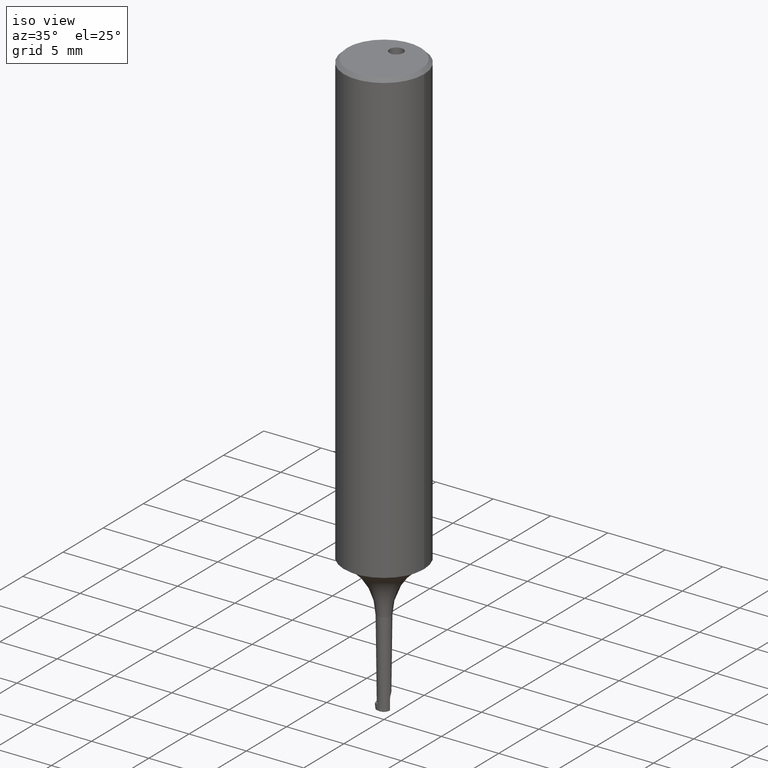
[diagram: clean part render]
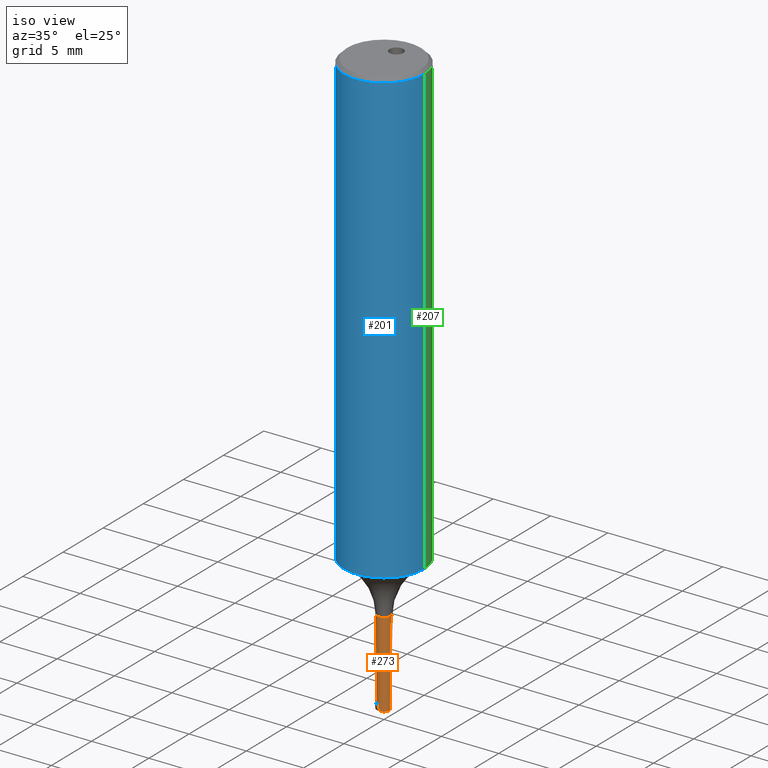
[diagram: same view with three faces highlighted in distinct colors, each labeled with its STEP entity id]
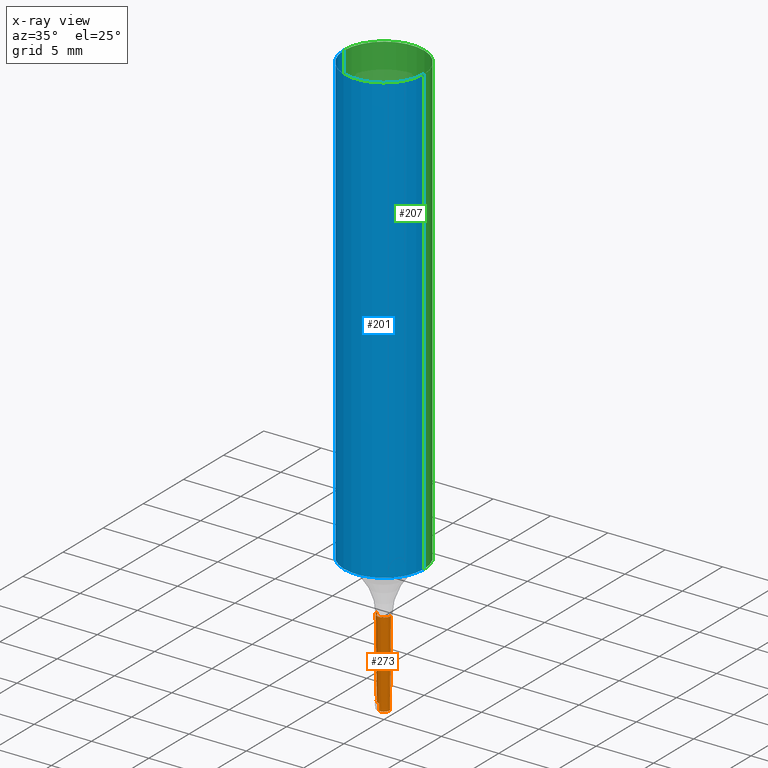
[diagram: x-ray of the same camera — body ghosted, the three highlighted faces saturated]
A machine part, iso view with three faces highlighted in distinct colors.
The next image is the same camera in x-ray (body ghosted, the three faces saturated) — at least one of them is partly hidden behind the body in this view.
Their STEP definitions:

[orange] entity #273 — the highlighted conical surface has half-angle 0.678 deg.
#177=VERTEX_POINT('NONE',#451);
#189=EDGE_CURVE('NONE',#309,#385,#464,.T.);
#199=EDGE_CURVE('NONE',#177,#371,#475,.F.);
#205=VERTEX_POINT('NONE',#482);
#213=EDGE_CURVE('NONE',#307,#401,#494,.F.);
#239=EDGE_CURVE('NONE',#385,#301,#522,.F.);
#273=ADVANCED_FACE('NONE',(#560),#561,.T.);
#281=EDGE_CURVE('NONE',#323,#205,#570,.F.);
#297=EDGE_CURVE('NONE',#323,#301,#587,.T.);
#301=VERTEX_POINT('NONE',#591);
#307=VERTEX_POINT('NONE',#597);
#309=VERTEX_POINT('NONE',#599);
#323=VERTEX_POINT('NONE',#613);
#335=EDGE_CURVE('NONE',#205,#371,#627,.T.);
#367=EDGE_CURVE('NONE',#307,#309,#662,.F.);
#371=VERTEX_POINT('NONE',#666);
#385=VERTEX_POINT('NONE',#681);
#395=EDGE_CURVE('NONE',#401,#177,#692,.T.);
#401=VERTEX_POINT('NONE',#698);
#451=CARTESIAN_POINT('',(-0.606201534117828,2.19077839488913E-015,-43.7757636492398));
#464=B_SPLINE_CURVE_WITH_KNOTS('',3,(#791,#792,#793,#794),.UNSPECIFIED.,.F.,.F.,(4,4),(0.0,1.0),.UNSPECIFIED.);
#475=CIRCLE('',#811,0.606201534117829);
#482=CARTESIAN_POINT('',(0.517913585126878,-1.80828630221237E-015,-51.239038270608));
#494=CIRCLE('',#833,0.525000000000001);
#522=LINE('',#920,#921);
#560=FACE_OUTER_BOUND('',#1063,.T.);
#561=CONICAL_SURFACE('',#1064,0.517192429022083,0.011829101226573);
#570=ELLIPSE('',#1075,0.518304236052932,0.517592595277501);
#587=ELLIPSE('',#1119,0.520045335021247,0.517196072492781);
#591=CARTESIAN_POINT('',(-0.063108177516942,-0.513974860144495,-51.2457048645177));
#597=CARTESIAN_POINT('',(-0.100177237868997,-0.515353782379616,-50.64));
#599=CARTESIAN_POINT('',(-0.10018624308668,-0.51540010900124,-50.6360105551992));
#613=CARTESIAN_POINT('',(0.267427079201015,-0.443333508049954,-51.2531295698077));
#627=LINE('',#1207,#1208);
#662=LINE('',#1261,#1262);
#666=CARTESIAN_POINT('',(0.606201534117828,-2.11654256985138E-015,-43.7757636492398));
#681=CARTESIAN_POINT('',(-0.0639814052876999,-0.521086729611695,-50.64));
#692=LINE('',#1337,#1338);
#698=CARTESIAN_POINT('',(-0.525000000000001,1.8973205981581E-015,-50.64));
#791=CARTESIAN_POINT('',(-0.10018624308668,-0.51540010900124,-50.6360105551992));
#792=CARTESIAN_POINT('',(-0.0881774515377763,-0.517711221994338,-50.6379373910918));
#793=CARTESIAN_POINT('',(-0.0760997427999065,-0.519607518660235,-50.6392672060254));
#794=CARTESIAN_POINT('',(-0.0639814052876999,-0.521086729611695,-50.64));
#811=AXIS2_PLACEMENT_3D('',#1420,#1421,#1422);
#833=AXIS2_PLACEMENT_3D('',#1460,#1461,#1462);
#920=CARTESIAN_POINT('',(-0.0630299017380239,-0.513337355084056,-51.3));
#921=VECTOR('',#1482,1.0);
#1063=EDGE_LOOP('',(#1524,#1525,#1526,#1527,#1528,#1529,#1530,#1531,#1532));
#1064=AXIS2_PLACEMENT_3D('',#1533,#1534,#1535);
#1075=AXIS2_PLACEMENT_3D('',#1547,#1548,#1549);
#1119=AXIS2_PLACEMENT_3D('',#1566,#1567,#1568);
#1207=CARTESIAN_POINT('',(0.517192429022083,-1.80576876042235E-015,-51.3));
#1208=VECTOR('',#1596,1000.0);
#1261=CARTESIAN_POINT('',(-0.0986874456879802,-0.507689665742155,-51.3));
#1262=VECTOR('',#1630,1.0);
#1337=CARTESIAN_POINT('',(-0.517192429022083,1.86910447389527E-015,-51.3));
#1338=VECTOR('',#1654,1000.0);
#1420=CARTESIAN_POINT('',(0.0,0.0,-43.7757636492398));
#1421=DIRECTION('',(0.0,0.0,-1.0));
#1422=DIRECTION('',(1.0,-3.49148336110938E-015,0.0));
#1460=CARTESIAN_POINT('',(0.0,0.0,-50.64));
#1461=DIRECTION('',(0.0,-0.0,1.0));
#1462=DIRECTION('',(1.0,-3.49148336110938E-015,-0.0));
#1482=DIRECTION('',(-0.00144157117970888,-0.0117406550883253,0.999930036997905));
#1524=ORIENTED_EDGE('',*,*,#395,.F.);
#1525=ORIENTED_EDGE('',*,*,#213,.F.);
#1526=ORIENTED_EDGE('',*,*,#367,.T.);
#1527=ORIENTED_EDGE('',*,*,#189,.T.);
#1528=ORIENTED_EDGE('',*,*,#239,.T.);
#1529=ORIENTED_EDGE('',*,*,#297,.F.);
#1530=ORIENTED_EDGE('',*,*,#281,.T.);
#1531=ORIENTED_EDGE('',*,*,#335,.T.);
#1532=ORIENTED_EDGE('',*,*,#199,.F.);
#1533=CARTESIAN_POINT('',(0.0,0.0,-51.3));
#1534=DIRECTION('',(-0.0,-0.0,1.0));
#1535=DIRECTION('',(1.0,-3.49148336110938E-015,0.0));
#1547=CARTESIAN_POINT('',(0.000320890549904473,1.33115467463307E-005,-51.2661641894687));
#1548=DIRECTION('',(0.0523359562429341,0.00217105965957894,-0.998627174767487));
#1549=DIRECTION('',(-0.997769038025445,-0.0413905900159752,-0.0523809680695934));
#1566=CARTESIAN_POINT('',(-1.11022302462516E-016,-0.000643054491710759,-51.2996582113884));
#1567=DIRECTION('',(-3.64959390261329E-016,-0.104528463267649,-0.994521895368274));
#1568=DIRECTION('',(-2.09161427898538E-015,0.994521895368274,-0.104528463267649));
#1596=DIRECTION('',(0.0118288253588083,-4.13001469217479E-017,0.999930036997905));
#1630=DIRECTION('',(0.00225710295558114,0.0116114855043226,-0.999930036997905));
#1654=DIRECTION('',(-0.0118288253588083,4.2748712391013E-017,0.999930036997905));

[blue] entity #201 — the highlighted cylindrical surface (partial cylindrical patch) has radius 3.5 mm, axis along (-0, -0, 1).
#155=VERTEX_POINT('NONE',#427);
#201=ADVANCED_FACE('NONE',(#477),#478,.T.);
#225=VERTEX_POINT('NONE',#507);
#233=VERTEX_POINT('NONE',#516);
#255=EDGE_CURVE('NONE',#315,#225,#541,.T.);
#285=EDGE_CURVE('NONE',#155,#315,#574,.T.);
#293=EDGE_CURVE('NONE',#155,#233,#583,.T.);
#315=VERTEX_POINT('NONE',#605);
#403=EDGE_CURVE('NONE',#225,#233,#700,.T.);
#427=CARTESIAN_POINT('',(-3.5,1.26488039877207E-014,-39.3));
#477=FACE_OUTER_BOUND('',#813,.T.);
#478=CYLINDRICAL_SURFACE('',#814,3.5);
#507=CARTESIAN_POINT('',(3.5,-1.22201917638828E-014,-0.300000000000007));
#516=CARTESIAN_POINT('',(-3.5,1.26488039877207E-014,-0.300000000000007));
#541=LINE('',#1035,#1036);
#574=CIRCLE('',#1080,3.5);
#583=LINE('',#1093,#1094);
#605=CARTESIAN_POINT('',(3.5,-1.22201917638828E-014,-39.3));
#700=CIRCLE('',#1348,3.5);
#813=EDGE_LOOP('',(#1424,#1425,#1426,#1427));
#814=AXIS2_PLACEMENT_3D('',#1428,#1429,#1430);
#1035=CARTESIAN_POINT('',(3.5,-1.22201917638828E-014,4.84780321269557));
#1036=VECTOR('',#1507,1000.0);
#1080=AXIS2_PLACEMENT_3D('',#1550,#1551,#1552);
#1093=CARTESIAN_POINT('',(-3.5,1.26488039877207E-014,4.84780321269557));
#1094=VECTOR('',#1565,1000.0);
#1348=AXIS2_PLACEMENT_3D('',#1658,#1659,#1660);
#1424=ORIENTED_EDGE('',*,*,#293,.F.);
#1425=ORIENTED_EDGE('',*,*,#285,.T.);
#1426=ORIENTED_EDGE('',*,*,#255,.T.);
#1427=ORIENTED_EDGE('',*,*,#403,.T.);
#1428=CARTESIAN_POINT('',(0.0,0.0,4.84780321269557));
#1429=DIRECTION('',(-0.0,-0.0,1.0));
#1430=DIRECTION('',(1.0,-3.49148336110938E-015,0.0));
#1507=DIRECTION('',(0.0,0.0,1.0));
#1550=CARTESIAN_POINT('',(0.0,0.0,-39.3));
#1551=DIRECTION('',(0.0,-0.0,1.0));
#1552=DIRECTION('',(1.0,-3.49148336110938E-015,-0.0));
#1565=DIRECTION('',(0.0,0.0,1.0));
#1658=CARTESIAN_POINT('',(0.0,0.0,-0.300000000000007));
#1659=DIRECTION('',(0.0,0.0,-1.0));
#1660=DIRECTION('',(1.0,-3.49148336110938E-015,0.0));

[green] entity #207 — the highlighted cylindrical surface (partial cylindrical patch) has radius 3.5 mm, axis along (-0, -0, 1).
#155=VERTEX_POINT('NONE',#427);
#171=EDGE_CURVE('NONE',#249,#155,#445,.F.);
#207=ADVANCED_FACE('NONE',(#484),#485,.T.);
#225=VERTEX_POINT('NONE',#507);
#233=VERTEX_POINT('NONE',#516);
#249=VERTEX_POINT('NONE',#533);
#255=EDGE_CURVE('NONE',#315,#225,#541,.T.);
#283=VERTEX_POINT('NONE',#572);
#287=EDGE_CURVE('NONE',#249,#283,#576,.F.);
#293=EDGE_CURVE('NONE',#155,#233,#583,.T.);
#313=EDGE_CURVE('NONE',#315,#389,#603,.F.);
#315=VERTEX_POINT('NONE',#605);
#347=VERTEX_POINT('NONE',#639);
#361=EDGE_CURVE('NONE',#347,#283,#656,.F.);
#383=EDGE_CURVE('NONE',#347,#389,#679,.F.);
#389=VERTEX_POINT('NONE',#685);
#399=EDGE_CURVE('NONE',#233,#225,#696,.F.);
#427=CARTESIAN_POINT('',(-3.5,1.26488039877207E-014,-39.3));
#445=CIRCLE('',#759,3.5);
#484=FACE_OUTER_BOUND('',#822,.T.);
#485=CYLINDRICAL_SURFACE('',#823,3.5);
#507=CARTESIAN_POINT('',(3.5,-1.22201917638828E-014,-0.300000000000007));
#516=CARTESIAN_POINT('',(-3.5,1.26488039877207E-014,-0.300000000000007));
#533=CARTESIAN_POINT('',(-1.95959179422653,2.90000000000001,-39.3));
#541=LINE('',#1035,#1036);
#572=CARTESIAN_POINT('',(-1.95959179422653,2.90000000000001,-37.0));
#576=LINE('',#1083,#1084);
#583=LINE('',#1093,#1094);
#603=CIRCLE('',#1160,3.5);
#605=CARTESIAN_POINT('',(3.5,-1.22201917638828E-014,-39.3));
#639=CARTESIAN_POINT('',(1.95959179422655,2.89999999999999,-37.0));
#656=CIRCLE('',#1252,3.5);
#679=LINE('',#1304,#1305);
#685=CARTESIAN_POINT('',(1.95959179422655,2.89999999999999,-39.3));
#696=CIRCLE('',#1343,3.5);
#759=AXIS2_PLACEMENT_3D('',#1391,#1392,#1393);
#822=EDGE_LOOP('',(#1433,#1434,#1435,#1436,#1437,#1438,#1439,#1440));
#823=AXIS2_PLACEMENT_3D('',#1441,#1442,#1443);
#1035=CARTESIAN_POINT('',(3.5,-1.22201917638828E-014,4.84780321269557));
#1036=VECTOR('',#1507,1000.0);
#1083=CARTESIAN_POINT('',(-1.95959179422653,2.90000000000001,4.84780321269557));
#1084=VECTOR('',#1553,1.0);
#1093=CARTESIAN_POINT('',(-3.5,1.26488039877207E-014,4.84780321269557));
#1094=VECTOR('',#1565,1000.0);
#1160=AXIS2_PLACEMENT_3D('',#1570,#1571,#1572);
#1252=AXIS2_PLACEMENT_3D('',#1626,#1627,#1628);
#1304=CARTESIAN_POINT('',(1.95959179422655,2.89999999999999,4.84780321269557));
#1305=VECTOR('',#1641,1.0);
#1343=AXIS2_PLACEMENT_3D('',#1655,#1656,#1657);
#1391=CARTESIAN_POINT('',(0.0,0.0,-39.3));
#1392=DIRECTION('',(0.0,0.0,-1.0));
#1393=DIRECTION('',(1.0,-3.49148336110938E-015,0.0));
#1433=ORIENTED_EDGE('',*,*,#171,.T.);
#1434=ORIENTED_EDGE('',*,*,#293,.T.);
#1435=ORIENTED_EDGE('',*,*,#399,.T.);
#1436=ORIENTED_EDGE('',*,*,#255,.F.);
#1437=ORIENTED_EDGE('',*,*,#313,.T.);
#1438=ORIENTED_EDGE('',*,*,#383,.F.);
#1439=ORIENTED_EDGE('',*,*,#361,.T.);
#1440=ORIENTED_EDGE('',*,*,#287,.F.);
#1441=CARTESIAN_POINT('',(0.0,0.0,4.84780321269557));
#1442=DIRECTION('',(-0.0,-0.0,1.0));
#1443=DIRECTION('',(1.0,-3.49148336110938E-015,0.0));
#1507=DIRECTION('',(0.0,0.0,1.0));
#1553=DIRECTION('',(0.0,0.0,-1.0));
#1565=DIRECTION('',(0.0,0.0,1.0));
#1570=CARTESIAN_POINT('',(0.0,0.0,-39.3));
#1571=DIRECTION('',(0.0,0.0,-1.0));
#1572=DIRECTION('',(1.0,-3.49148336110938E-015,0.0));
#1626=CARTESIAN_POINT('',(0.0,0.0,-37.0));
#1627=DIRECTION('',(0.0,0.0,-1.0));
#1628=DIRECTION('',(1.0,-3.49148336110938E-015,0.0));
#1641=DIRECTION('',(0.0,-0.0,1.0));
#1655=CARTESIAN_POINT('',(0.0,0.0,-0.300000000000007));
#1656=DIRECTION('',(0.0,-0.0,1.0));
#1657=DIRECTION('',(1.0,-3.49148336110938E-015,-0.0));